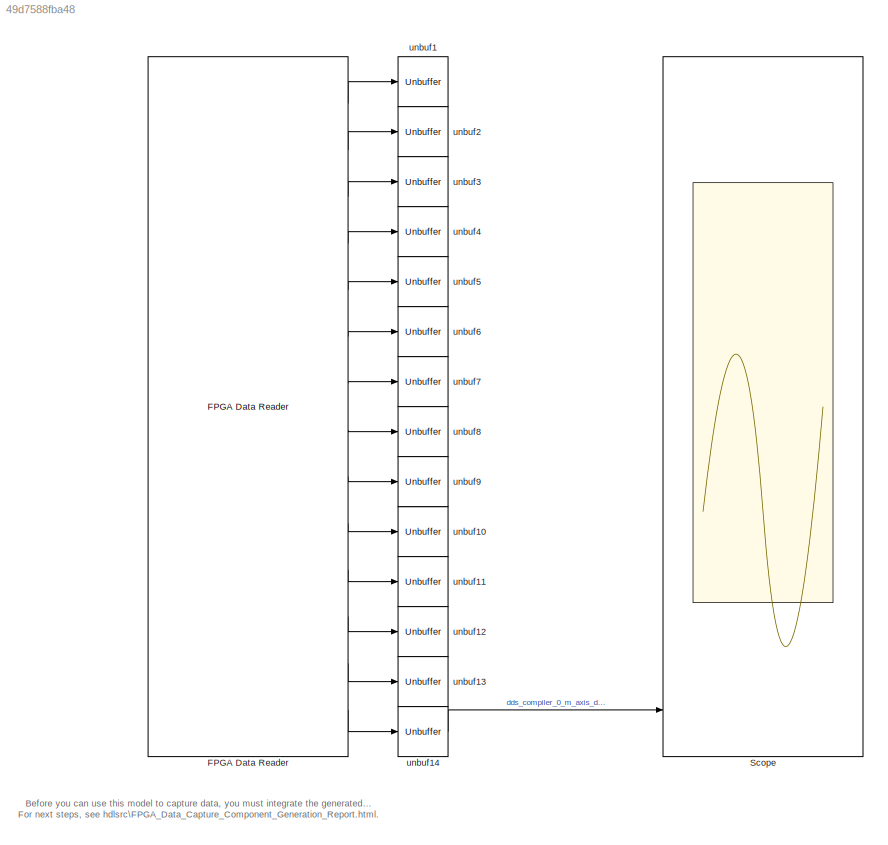
MODEL slx_49d7588fba48
KIND model
CONFIG AbsTol = auto
CONFIG EnableMultiTasking = off
CONFIG FixedStep = auto
CONFIG MaxStep = auto
CONFIG MinStep = auto
CONFIG RelTol = 1e-3
CONFIG SampleTimeConstraint = Unconstrained
CONFIG Solver = VariableStepAuto
CONFIG SolverName = VariableStepAuto
CONFIG StartTime = 0.0
CONFIG StopTime = inf
BLOCK [Reference] FPGA Data Reader  REF=hdlverifier_fpga_reader/FPGA Data Reader
  Ports = [0, 14]
  SourceBlock = hdlverifier_fpga_reader/FPGA Data Reader
  SourceType = hdlverifier.internal.DataCapture.SimulinkBlock
BLOCK [Scope] Scope
  NumInputPorts = 14
  Ports = [14]
  ScopeSpecificationString = Simulink.scopes.TimeScopeBlockCfg('CurrentConfiguration', extmgr.ConfigurationSet(extmgr.Configuration('Core','General UI',true),extmgr.Configuration('Core','Source UI',true),extmgr.Configuration('Sources','WiredSimulink',true),extmgr.Configuration('Visuals','Time Domain',true,'SerializedDisplays',{struct('MinYLimReal','-1425.75','MaxYLimReal','12831.75','YLabelReal','','MinYLimMag','  0.00000','M...<+1746ch>
BLOCK [Unbuffer] unbuf1
  Ports = [1, 1]
BLOCK [Unbuffer] unbuf10
  Ports = [1, 1]
BLOCK [Unbuffer] unbuf11
  Ports = [1, 1]
BLOCK [Unbuffer] unbuf12
  Ports = [1, 1]
BLOCK [Unbuffer] unbuf13
  Ports = [1, 1]
BLOCK [Unbuffer] unbuf14
  Ports = [1, 1]
BLOCK [Unbuffer] unbuf2
  Ports = [1, 1]
BLOCK [Unbuffer] unbuf3
  Ports = [1, 1]
BLOCK [Unbuffer] unbuf4
  Ports = [1, 1]
BLOCK [Unbuffer] unbuf5
  Ports = [1, 1]
BLOCK [Unbuffer] unbuf6
  Ports = [1, 1]
BLOCK [Unbuffer] unbuf7
  Ports = [1, 1]
BLOCK [Unbuffer] unbuf8
  Ports = [1, 1]
BLOCK [Unbuffer] unbuf9
  Ports = [1, 1]
ANNOTATION (root): Before you can use this model to capture data, you must integrate the generated IP into your FPGA design. For next steps, see hdlsrc\FPGA_Data_Capture_Component_Generation_Report.html .
LINE FPGA Data Reader:1 -> unbuf1:1
LINE FPGA Data Reader:10 -> unbuf10:1
LINE FPGA Data Reader:11 -> unbuf11:1
LINE FPGA Data Reader:12 -> unbuf12:1
LINE FPGA Data Reader:13 -> unbuf13:1
LINE FPGA Data Reader:14 -> unbuf14:1
LINE FPGA Data Reader:2 -> unbuf2:1
LINE FPGA Data Reader:3 -> unbuf3:1
LINE FPGA Data Reader:4 -> unbuf4:1
LINE FPGA Data Reader:5 -> unbuf5:1
LINE FPGA Data Reader:6 -> unbuf6:1
LINE FPGA Data Reader:7 -> unbuf7:1
LINE FPGA Data Reader:8 -> unbuf8:1
LINE FPGA Data Reader:9 -> unbuf9:1
LINE unbuf14:1 -> Scope:14
